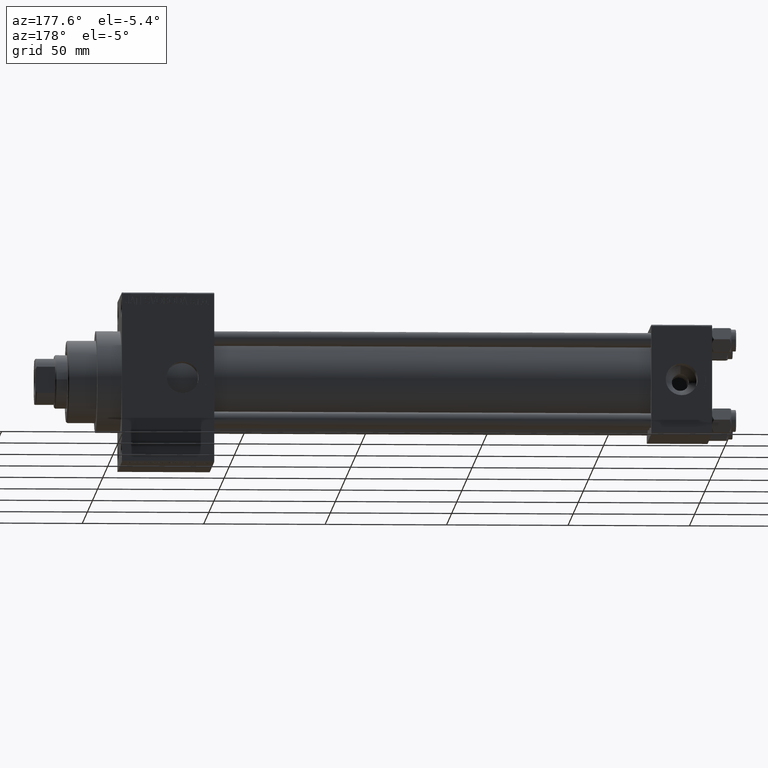
[diagram: clean part render]
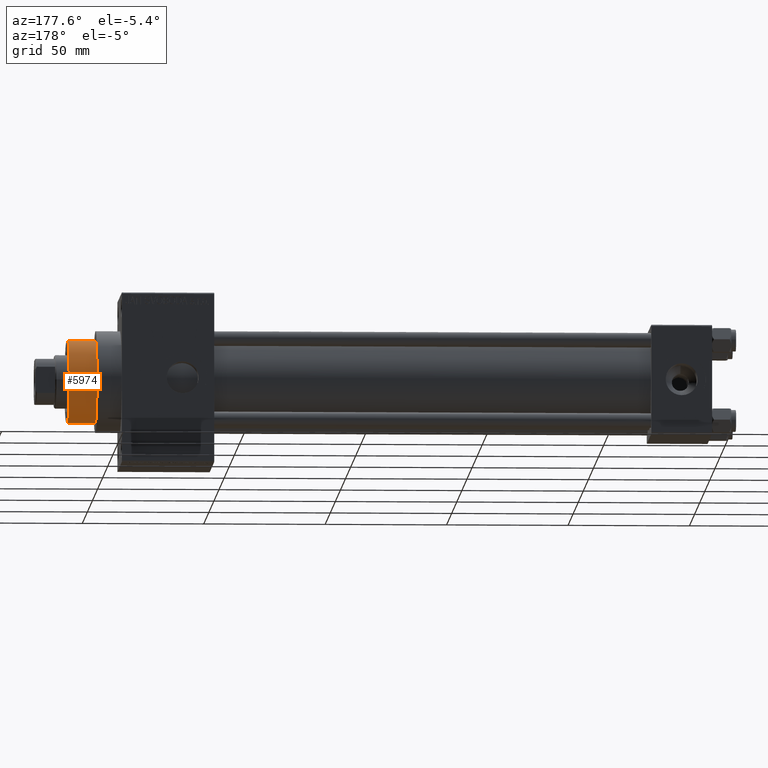
[diagram: same view with one face highlighted and labeled with its STEP entity id]
A machine part, auxiliary view. The second image highlights one B-rep face of the part: STEP entity #5974.
In plain terms, the highlighted cylindrical surface (partial cylindrical patch) has radius 17 mm, axis along (-1, 0, 0).
Its self-contained STEP definition (entity closure, byte-faithful):
#2458 = CARTESIAN_POINT ( 'NONE',  ( 17.00000000000000000, 2.081899558550500280E-15, 55.26000000000000512 ) ) ;
#2755 = CIRCLE ( 'NONE', #30507, 17.00000000000000000 ) ;
#4333 = ORIENTED_EDGE ( 'NONE', *, *, #20293, .T. ) ;
#4903 = ORIENTED_EDGE ( 'NONE', *, *, #6021, .T. ) ;
#5439 = VERTEX_POINT ( 'NONE', #13024 ) ;
#5974 = ADVANCED_FACE ( 'NONE', ( #42483 ), #45953, .T. ) ;
#6021 = EDGE_CURVE ( 'NONE', #46878, #38768, #17113, .T. ) ;
#6488 = ORIENTED_EDGE ( 'NONE', *, *, #41497, .T. ) ;
#6917 = VECTOR ( 'NONE', #24824, 1000.000000000000000 ) ;
#8462 = CARTESIAN_POINT ( 'NONE',  ( 0.000000000000000000, 0.000000000000000000, 55.26000000000000512 ) ) ;
#9675 = AXIS2_PLACEMENT_3D ( 'NONE', #29136, #18190, #48004 ) ;
#13024 = CARTESIAN_POINT ( 'NONE',  ( 17.00000000000000000, 2.081899558550500280E-15, 54.76000000000001222 ) ) ;
#16205 = VERTEX_POINT ( 'NONE', #33500 ) ;
#17096 = LINE ( 'NONE', #2458, #30516 ) ;
#17113 = LINE ( 'NONE', #47175, #6917 ) ;
#18190 = DIRECTION ( 'NONE',  ( 0.000000000000000000, 0.000000000000000000, -1.000000000000000000 ) ) ;
#18902 = DIRECTION ( 'NONE',  ( -0.000000000000000000, -0.000000000000000000, -1.000000000000000000 ) ) ;
#20293 = EDGE_CURVE ( 'NONE', #5439, #46878, #25508, .T. ) ;
#22639 = DIRECTION ( 'NONE',  ( -1.000000000000000000, 0.000000000000000000, 0.000000000000000000 ) ) ;
#24824 = DIRECTION ( 'NONE',  ( -0.000000000000000000, -0.000000000000000000, -1.000000000000000000 ) ) ;
#25508 = CIRCLE ( 'NONE', #9675, 17.00000000000000000 ) ;
#26551 = EDGE_CURVE ( 'NONE', #5439, #16205, #17096, .T. ) ;
#29136 = CARTESIAN_POINT ( 'NONE',  ( 0.000000000000000000, 0.000000000000000000, 54.76000000000001222 ) ) ;
#29911 = AXIS2_PLACEMENT_3D ( 'NONE', #8462, #18902, #22639 ) ;
#30507 = AXIS2_PLACEMENT_3D ( 'NONE', #33311, #44733, #48448 ) ;
#30516 = VECTOR ( 'NONE', #40196, 1000.000000000000000 ) ;
#31561 = ORIENTED_EDGE ( 'NONE', *, *, #26551, .F. ) ;
#33311 = CARTESIAN_POINT ( 'NONE',  ( 0.000000000000000000, 0.000000000000000000, 43.25999999999999801 ) ) ;
#33500 = CARTESIAN_POINT ( 'NONE',  ( 17.00000000000000000, 2.081899558550500280E-15, 43.25999999999999801 ) ) ;
#34078 = CARTESIAN_POINT ( 'NONE',  ( -17.00000000000000000, 0.000000000000000000, 54.76000000000001222 ) ) ;
#36357 = CARTESIAN_POINT ( 'NONE',  ( -17.00000000000000000, 0.000000000000000000, 43.25999999999999801 ) ) ;
#38768 = VERTEX_POINT ( 'NONE', #36357 ) ;
#40196 = DIRECTION ( 'NONE',  ( -0.000000000000000000, -0.000000000000000000, -1.000000000000000000 ) ) ;
#41497 = EDGE_CURVE ( 'NONE', #38768, #16205, #2755, .T. ) ;
#42483 = FACE_OUTER_BOUND ( 'NONE', #42533, .T. ) ;
#42533 = EDGE_LOOP ( 'NONE', ( #31561, #4333, #4903, #6488 ) ) ;
#44733 = DIRECTION ( 'NONE',  ( 0.000000000000000000, 0.000000000000000000, 1.000000000000000000 ) ) ;
#45953 = CYLINDRICAL_SURFACE ( 'NONE', #29911, 17.00000000000000000 ) ;
#46878 = VERTEX_POINT ( 'NONE', #34078 ) ;
#47175 = CARTESIAN_POINT ( 'NONE',  ( -17.00000000000000000, 0.000000000000000000, 55.26000000000000512 ) ) ;
#48004 = DIRECTION ( 'NONE',  ( 1.000000000000000000, 0.000000000000000000, 0.000000000000000000 ) ) ;
#48448 = DIRECTION ( 'NONE',  ( 1.000000000000000000, 0.000000000000000000, 0.000000000000000000 ) ) ;